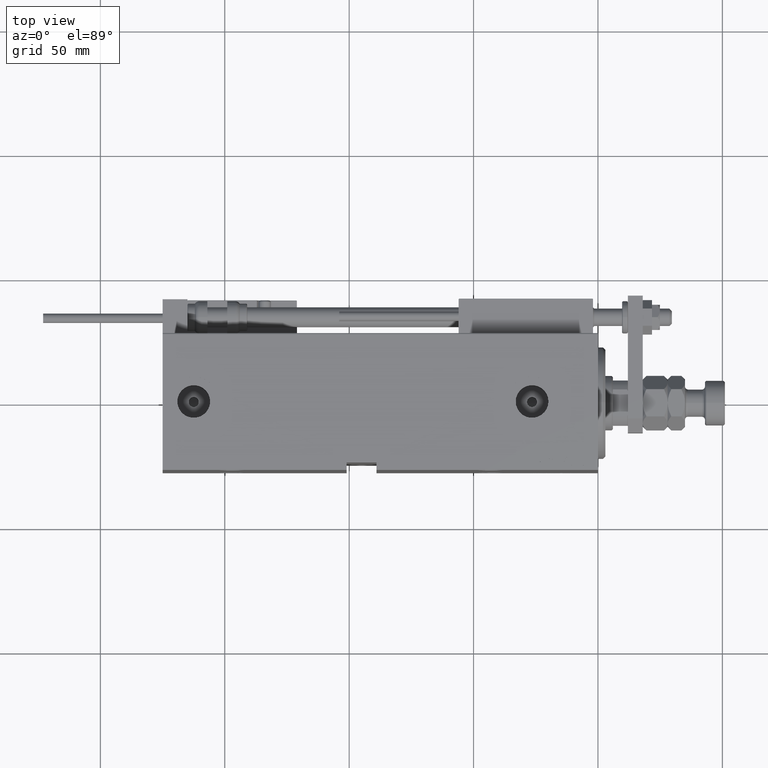
[diagram: clean part render]
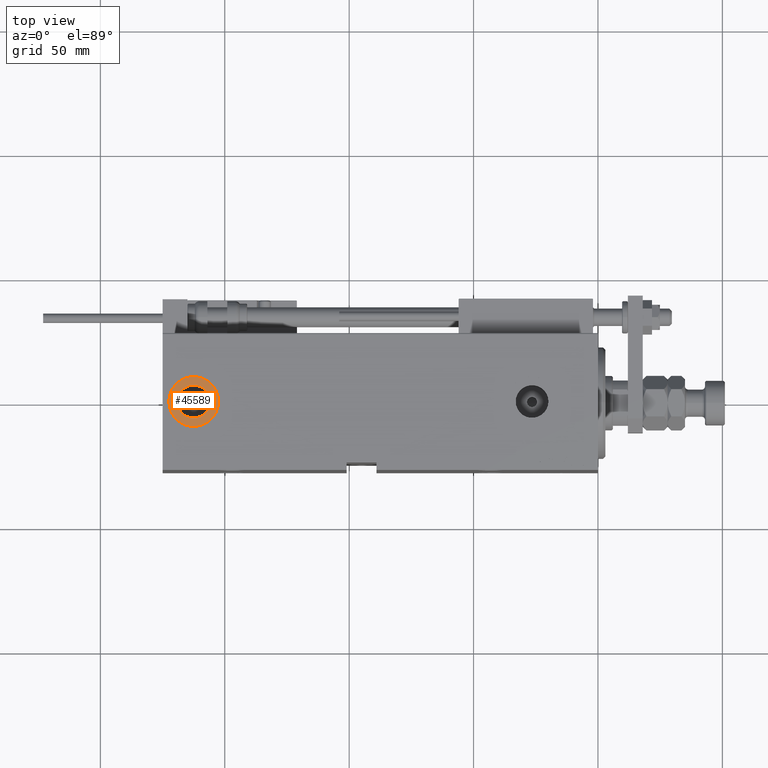
[diagram: same view with one face highlighted and labeled with its STEP entity id]
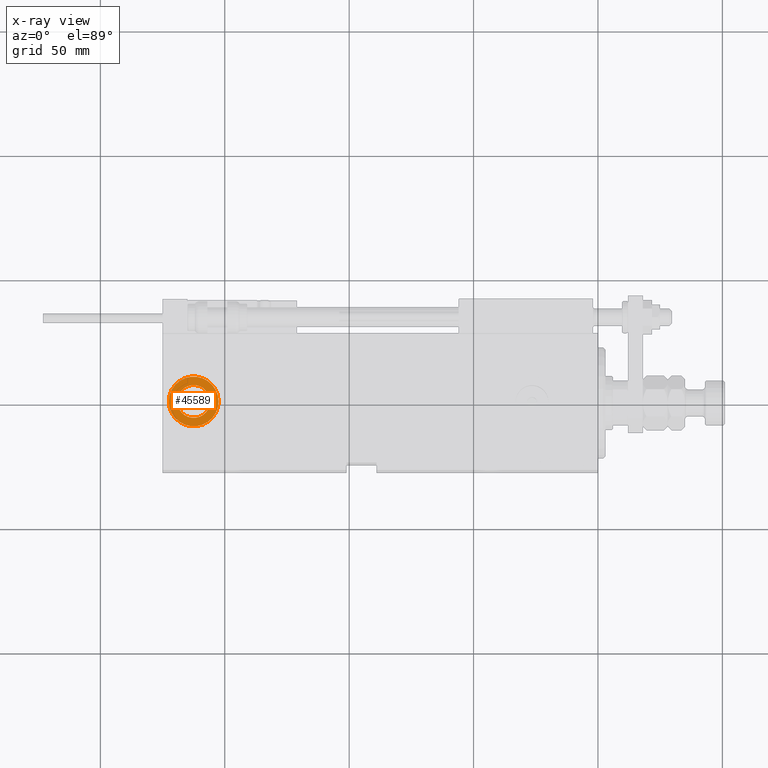
[diagram: x-ray of the same camera — body ghosted, the highlighted face saturated]
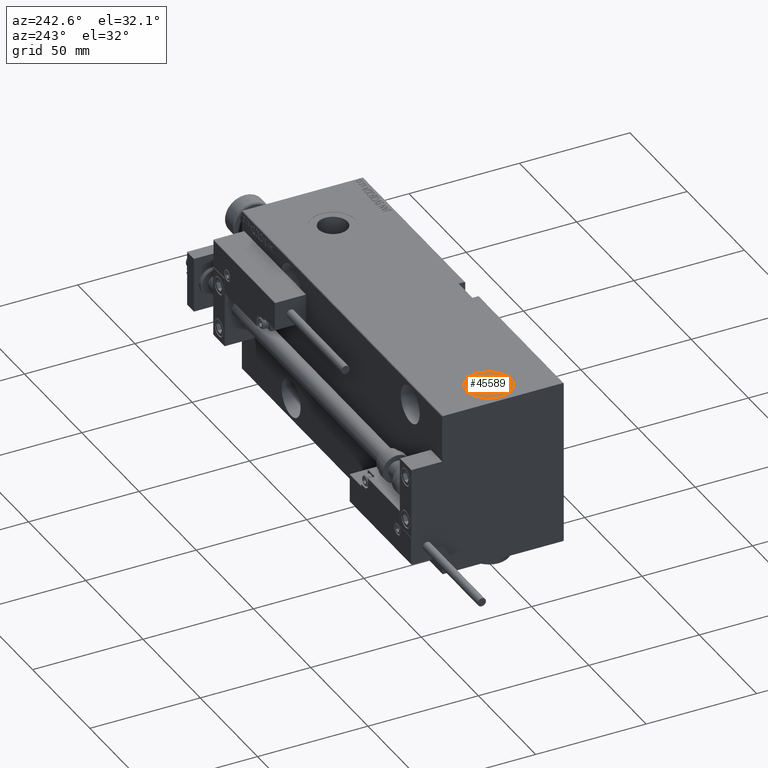
[diagram: same view with one face highlighted and labeled with its STEP entity id]
A machine part, top view. The second image highlights one B-rep face of the part: STEP entity #45589.
The next image is the same camera in x-ray: the body ghosted, the highlighted face saturated — about 0% of this face is hidden behind the body in this view.
A second angle (auxiliary view) of the same face is appended — the face is thin or edge-on in the first view.
In plain terms, the highlighted planar face has unit normal (0, 0, 1).
Its self-contained STEP definition (entity closure, byte-faithful):
#1858 = AXIS2_PLACEMENT_3D ( 'NONE', #20663, #11581, #32969 ) ;
#2639 = DIRECTION ( 'NONE',  ( 0.000000000000000000, 0.000000000000000000, 1.000000000000000000 ) ) ;
#5519 = EDGE_CURVE ( 'NONE', #48527, #35722, #30756, .T. ) ;
#6057 = DIRECTION ( 'NONE',  ( 1.000000000000000000, 0.000000000000000000, 0.000000000000000000 ) ) ;
#9178 = ORIENTED_EDGE ( 'NONE', *, *, #5519, .F. ) ;
#10074 = EDGE_CURVE ( 'NONE', #39207, #52138, #46300, .T. ) ;
#10270 = AXIS2_PLACEMENT_3D ( 'NONE', #13413, #17967, #38832 ) ;
#10360 = EDGE_LOOP ( 'NONE', ( #52904, #9178 ) ) ;
#10469 = FACE_OUTER_BOUND ( 'NONE', #26343, .T. ) ;
#11124 = CARTESIAN_POINT ( 'NONE',  ( 162.4999999999999716, -9.462128050782584868E-15, 37.39999999999999858 ) ) ;
#11581 = DIRECTION ( 'NONE',  ( 0.000000000000000000, 0.000000000000000000, 1.000000000000000000 ) ) ;
#11610 = EDGE_CURVE ( 'NONE', #35722, #48527, #18201, .T. ) ;
#13413 = CARTESIAN_POINT ( 'NONE',  ( 162.4999999999999716, -9.462128050782584868E-15, 37.39999999999999858 ) ) ;
#13938 = PLANE ( 'NONE',  #10270 ) ;
#15604 = AXIS2_PLACEMENT_3D ( 'NONE', #42525, #2639, #35276 ) ;
#17967 = DIRECTION ( 'NONE',  ( 0.000000000000000000, 0.000000000000000000, 1.000000000000000000 ) ) ;
#18201 = CIRCLE ( 'NONE', #15604, 6.580000000000002736 ) ;
#20663 = CARTESIAN_POINT ( 'NONE',  ( 162.4999999999999716, -9.462128050782584868E-15, 37.39999999999999858 ) ) ;
#21676 = CARTESIAN_POINT ( 'NONE',  ( 169.0799999999999841, -9.462128050782584868E-15, 37.39999999999999858 ) ) ;
#23795 = ORIENTED_EDGE ( 'NONE', *, *, #46558, .T. ) ;
#26343 = EDGE_LOOP ( 'NONE', ( #23795, #32773 ) ) ;
#30756 = CIRCLE ( 'NONE', #46146, 6.580000000000002736 ) ;
#31234 = CARTESIAN_POINT ( 'NONE',  ( 152.4999999999999716, -8.237481251635231809E-15, 37.39999999999999858 ) ) ;
#32773 = ORIENTED_EDGE ( 'NONE', *, *, #10074, .T. ) ;
#32969 = DIRECTION ( 'NONE',  ( 1.000000000000000000, 0.000000000000000000, 0.000000000000000000 ) ) ;
#34284 = FACE_BOUND ( 'NONE', #10360, .T. ) ;
#35276 = DIRECTION ( 'NONE',  ( 1.000000000000000000, 0.000000000000000000, 0.000000000000000000 ) ) ;
#35722 = VERTEX_POINT ( 'NONE', #21676 ) ;
#36661 = DIRECTION ( 'NONE',  ( 1.000000000000000000, 0.000000000000000000, 0.000000000000000000 ) ) ;
#38500 = CARTESIAN_POINT ( 'NONE',  ( 155.9199999999999875, -8.656310456943622671E-15, 37.39999999999999858 ) ) ;
#38698 = DIRECTION ( 'NONE',  ( 0.000000000000000000, 0.000000000000000000, 1.000000000000000000 ) ) ;
#38832 = DIRECTION ( 'NONE',  ( 1.000000000000000000, 0.000000000000000000, -0.000000000000000000 ) ) ;
#39207 = VERTEX_POINT ( 'NONE', #31234 ) ;
#39916 = DIRECTION ( 'NONE',  ( 0.000000000000000000, 0.000000000000000000, 1.000000000000000000 ) ) ;
#42525 = CARTESIAN_POINT ( 'NONE',  ( 162.4999999999999716, -9.462128050782584868E-15, 37.39999999999999858 ) ) ;
#44488 = CIRCLE ( 'NONE', #51322, 10.00000000000000888 ) ;
#45479 = CARTESIAN_POINT ( 'NONE',  ( 172.5000000000000000, -9.462128050782584868E-15, 37.39999999999999858 ) ) ;
#45589 = ADVANCED_FACE ( 'NONE', ( #34284, #10469 ), #13938, .T. ) ;
#46146 = AXIS2_PLACEMENT_3D ( 'NONE', #48201, #39916, #36661 ) ;
#46300 = CIRCLE ( 'NONE', #1858, 10.00000000000000888 ) ;
#46558 = EDGE_CURVE ( 'NONE', #52138, #39207, #44488, .T. ) ;
#48201 = CARTESIAN_POINT ( 'NONE',  ( 162.4999999999999716, -9.462128050782584868E-15, 37.39999999999999858 ) ) ;
#48527 = VERTEX_POINT ( 'NONE', #38500 ) ;
#51322 = AXIS2_PLACEMENT_3D ( 'NONE', #11124, #38698, #6057 ) ;
#52138 = VERTEX_POINT ( 'NONE', #45479 ) ;
#52904 = ORIENTED_EDGE ( 'NONE', *, *, #11610, .F. ) ;